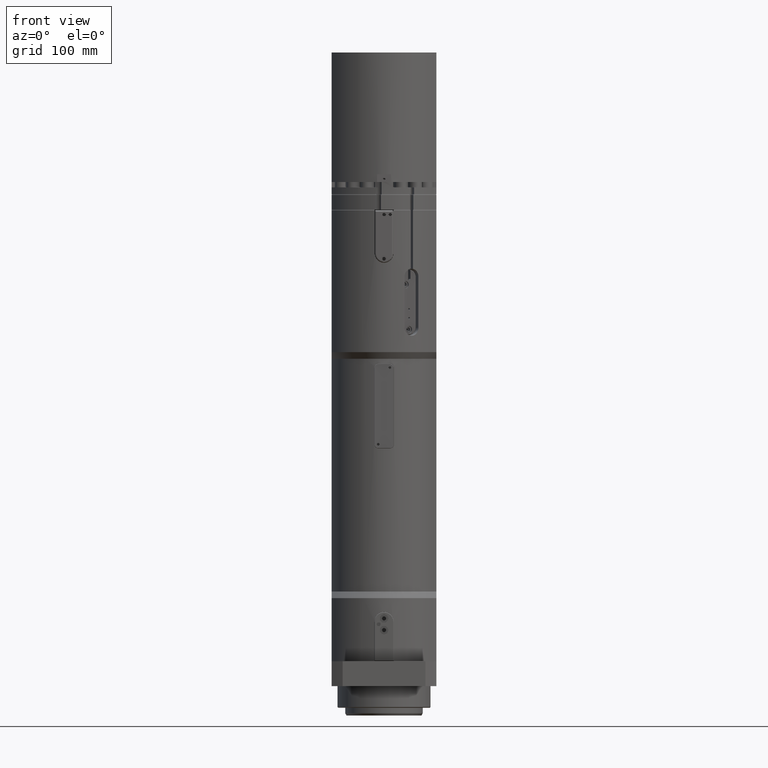
[diagram: clean part render]
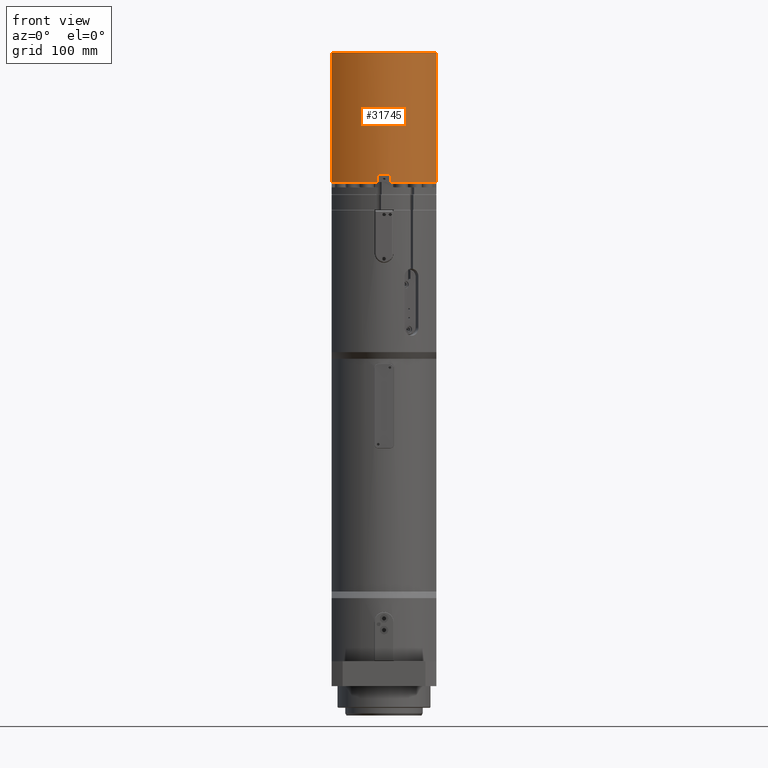
[diagram: same view with one face highlighted and labeled with its STEP entity id]
A machine part, front view. The second image highlights one B-rep face of the part: STEP entity #31745.
In plain terms, the highlighted cylindrical surface (partial cylindrical patch) has radius 78 mm, axis along (0, 0, 1).
Its self-contained STEP definition (entity closure, byte-faithful):
#3591=LINE('',#57537,#6219);
#3602=LINE('',#57565,#6230);
#3603=LINE('',#57568,#6231);
#3604=LINE('',#57573,#6232);
#6219=VECTOR('',#40907,10.);
#6230=VECTOR('',#40934,10.);
#6231=VECTOR('',#40937,10.);
#6232=VECTOR('',#40942,10.);
#7133=CYLINDRICAL_SURFACE('',#34243,78.);
#8546=FACE_OUTER_BOUND('',#10436,.T.);
#10436=EDGE_LOOP('',(#26614,#26615,#26616,#26617,#26618,#26619,#26620,#26621,
#26622));
#12373=CIRCLE('',#34160,77.9999999996185);
#12405=CIRCLE('',#34231,78.);
#12412=CIRCLE('',#34244,78.);
#12413=CIRCLE('',#34245,78.);
#12414=CIRCLE('',#34246,78.);
#14788=VERTEX_POINT('',#57262);
#14804=VERTEX_POINT('',#57323);
#14858=VERTEX_POINT('',#57517);
#14863=VERTEX_POINT('',#57526);
#14866=VERTEX_POINT('',#57534);
#14875=VERTEX_POINT('',#57563);
#14876=VERTEX_POINT('',#57567);
#14877=VERTEX_POINT('',#57570);
#14878=VERTEX_POINT('',#57572);
#18821=EDGE_CURVE('',#14788,#14804,#12373,.T.);
#18895=EDGE_CURVE('',#14863,#14858,#12405,.T.);
#18900=EDGE_CURVE('',#14866,#14858,#3591,.T.);
#18915=EDGE_CURVE('',#14875,#14863,#3602,.T.);
#18916=EDGE_CURVE('',#14876,#14788,#3603,.T.);
#18917=EDGE_CURVE('',#14804,#14866,#12412,.T.);
#18918=EDGE_CURVE('',#14875,#14877,#12413,.T.);
#18919=EDGE_CURVE('',#14877,#14878,#3604,.T.);
#18920=EDGE_CURVE('',#14878,#14876,#12414,.T.);
#26614=ORIENTED_EDGE('',*,*,#18916,.T.);
#26615=ORIENTED_EDGE('',*,*,#18821,.T.);
#26616=ORIENTED_EDGE('',*,*,#18917,.T.);
#26617=ORIENTED_EDGE('',*,*,#18900,.T.);
#26618=ORIENTED_EDGE('',*,*,#18895,.F.);
#26619=ORIENTED_EDGE('',*,*,#18915,.F.);
#26620=ORIENTED_EDGE('',*,*,#18918,.T.);
#26621=ORIENTED_EDGE('',*,*,#18919,.T.);
#26622=ORIENTED_EDGE('',*,*,#18920,.T.);
#31745=ADVANCED_FACE('',(#8546),#7133,.T.);
#34160=AXIS2_PLACEMENT_3D('',#57367,#40713,#40714);
#34231=AXIS2_PLACEMENT_3D('',#57528,#40897,#40898);
#34243=AXIS2_PLACEMENT_3D('',#57566,#40935,#40936);
#34244=AXIS2_PLACEMENT_3D('',#57569,#40938,#40939);
#34245=AXIS2_PLACEMENT_3D('',#57571,#40940,#40941);
#34246=AXIS2_PLACEMENT_3D('',#57574,#40943,#40944);
#40713=DIRECTION('center_axis',(0.,0.,1.));
#40714=DIRECTION('ref_axis',(-0.0384615384628275,-0.999260081289687,0.));
#40897=DIRECTION('center_axis',(8.00718342386111E-17,7.95620553405099E-17,
1.));
#40898=DIRECTION('ref_axis',(-0.865384615384615,-0.501108239261362,1.09162134939419E-16));
#40907=DIRECTION('',(8.00718342386111E-17,7.95620553405099E-17,1.));
#40934=DIRECTION('',(8.00718342386111E-17,7.95620553405099E-17,1.));
#40935=DIRECTION('center_axis',(8.00718342386111E-17,7.95620553405099E-17,
1.));
#40936=DIRECTION('ref_axis',(-0.865384615384615,-0.501108239261362,1.09162134939419E-16));
#40937=DIRECTION('',(-8.00718342386111E-17,-7.95620553405099E-17,-1.));
#40938=DIRECTION('center_axis',(8.00718342386111E-17,7.95620553405099E-17,
1.));
#40939=DIRECTION('ref_axis',(-0.865384615384615,-0.501108239261362,1.09162134939419E-16));
#40940=DIRECTION('center_axis',(8.00718342386111E-17,7.95620553405099E-17,
1.));
#40941=DIRECTION('ref_axis',(-0.865384615384615,-0.501108239261362,1.09162134939419E-16));
#40942=DIRECTION('',(8.00718342386111E-17,7.95620553405099E-17,1.));
#40943=DIRECTION('center_axis',(8.00718342386111E-17,7.95620553405099E-17,
1.));
#40944=DIRECTION('ref_axis',(-0.865384615384615,-0.501108239261362,1.09162134939419E-16));
#57262=CARTESIAN_POINT('',(8.81759604427435,-77.4999999999999,650.));
#57323=CARTESIAN_POINT('',(11.6502822714806,-77.1250343468255,650.));
#57367=CARTESIAN_POINT('Origin',(8.59046167533961E-11,-3.99822397412208E-10,
650.));
#57517=CARTESIAN_POINT('',(67.5000000000002,-39.086442662386,817.));
#57526=CARTESIAN_POINT('',(-67.4999999999998,-39.0864426623861,817.));
#57528=CARTESIAN_POINT('Origin',(1.37716975075866E-13,1.08284640597115E-13,
817.));
#57534=CARTESIAN_POINT('',(67.5000000000002,-39.086442662386,650.));
#57537=CARTESIAN_POINT('',(67.5000000000002,-39.086442662386,650.));
#57563=CARTESIAN_POINT('',(-67.4999999999998,-39.0864426623861,650.));
#57565=CARTESIAN_POINT('',(-67.4999999999998,-39.0864426623861,650.));
#57566=CARTESIAN_POINT('Origin',(1.24344978758017E-13,9.49977773552503E-14,
650.));
#57567=CARTESIAN_POINT('',(8.81759604427435,-77.4999999999999,660.));
#57568=CARTESIAN_POINT('',(8.81759604427434,-77.4999999999999,650.));
#57569=CARTESIAN_POINT('Origin',(1.24344978758017E-13,9.49977773552503E-14,
650.));
#57570=CARTESIAN_POINT('',(-8.81759604427402,-77.4999999999999,650.));
#57571=CARTESIAN_POINT('Origin',(1.24344978758017E-13,9.49977773552503E-14,
650.));
#57572=CARTESIAN_POINT('',(-8.81759604427402,-77.4999999999999,660.));
#57573=CARTESIAN_POINT('',(-8.81759604427402,-77.4999999999999,650.));
#57574=CARTESIAN_POINT('Origin',(1.25145697100404E-13,9.57933979086554E-14,
660.));